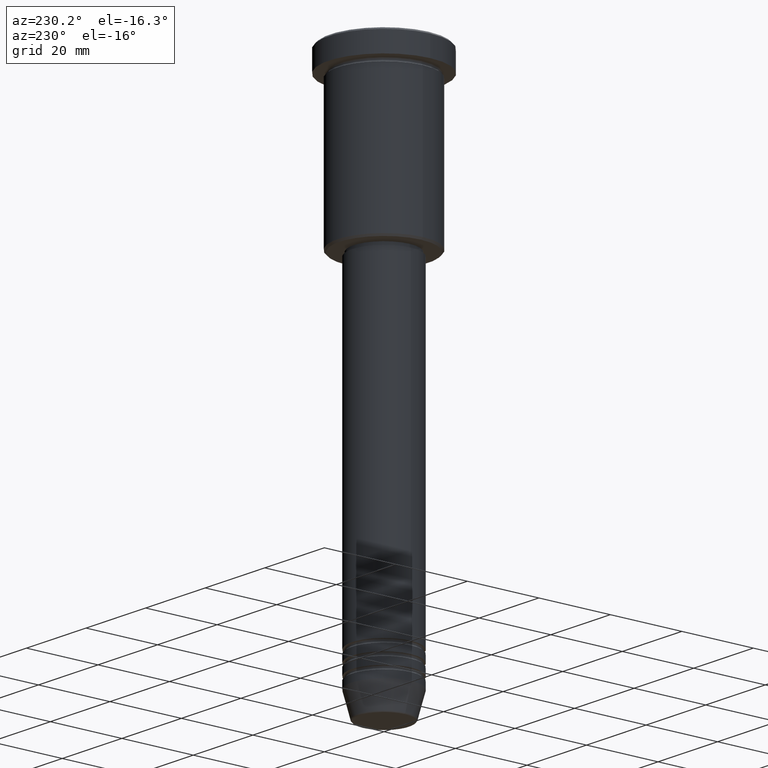
[diagram: clean part render]
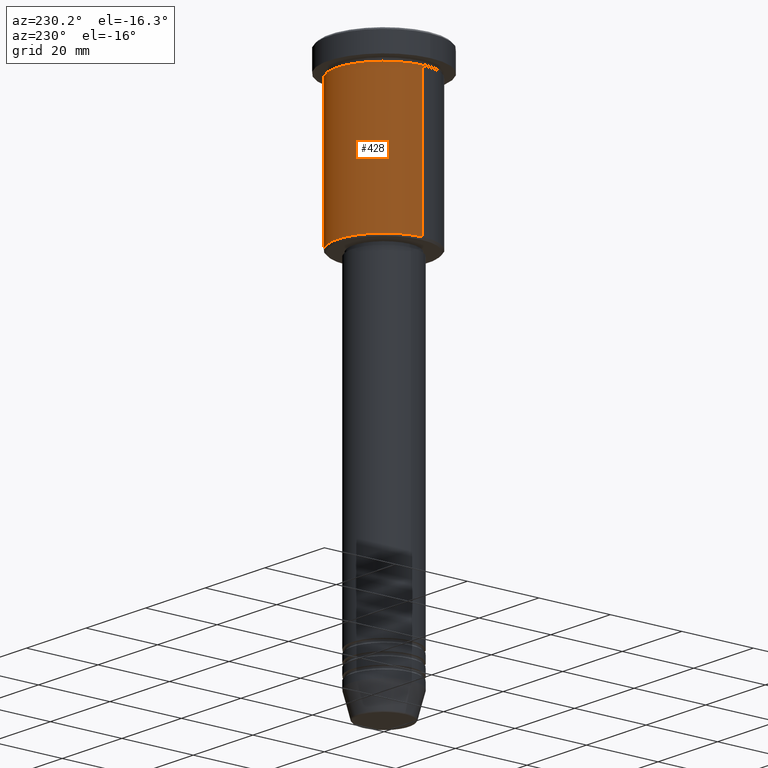
[diagram: same view with one face highlighted and labeled with its STEP entity id]
A machine part, auxiliary view. The second image highlights one B-rep face of the part: STEP entity #428.
In plain terms, the highlighted cylindrical surface (partial cylindrical patch) has radius 13 mm, axis along (-0, -0, 1).
Its self-contained STEP definition (entity closure, byte-faithful):
#43 = CARTESIAN_POINT ( 'NONE',  ( -13.00000000000000000, 1.592040838891559095E-15, 0.000000000000000000 ) ) ;
#51 = CIRCLE ( 'NONE', #689, 13.00000000000000000 ) ;
#56 = LINE ( 'NONE', #979, #169 ) ;
#96 = VERTEX_POINT ( 'NONE', #802 ) ;
#104 = ORIENTED_EDGE ( 'NONE', *, *, #233, .T. ) ;
#169 = VECTOR ( 'NONE', #1144, 1000.000000000000000 ) ;
#179 = CYLINDRICAL_SURFACE ( 'NONE', #951, 13.00000000000000000 ) ;
#220 = EDGE_CURVE ( 'NONE', #440, #1136, #56, .T. ) ;
#233 = EDGE_CURVE ( 'NONE', #440, #96, #280, .T. ) ;
#244 = EDGE_LOOP ( 'NONE', ( #104, #1083, #1157, #1183 ) ) ;
#251 = CARTESIAN_POINT ( 'NONE',  ( 0.000000000000000000, 0.000000000000000000, -6.999999999999995559 ) ) ;
#276 = VERTEX_POINT ( 'NONE', #770 ) ;
#280 = CIRCLE ( 'NONE', #586, 13.00000000000000000 ) ;
#344 = EDGE_CURVE ( 'NONE', #1136, #276, #51, .T. ) ;
#372 = CARTESIAN_POINT ( 'NONE',  ( 13.00000000000000000, 0.000000000000000000, -45.50000000000001421 ) ) ;
#428 = ADVANCED_FACE ( 'NONE', ( #805 ), #179, .T. ) ;
#440 = VERTEX_POINT ( 'NONE', #372 ) ;
#501 = DIRECTION ( 'NONE',  ( -1.000000000000000000, 0.000000000000000000, 0.000000000000000000 ) ) ;
#526 = DIRECTION ( 'NONE',  ( 1.000000000000000000, 0.000000000000000000, 0.000000000000000000 ) ) ;
#586 = AXIS2_PLACEMENT_3D ( 'NONE', #600, #605, #501 ) ;
#597 = DIRECTION ( 'NONE',  ( -0.000000000000000000, -0.000000000000000000, 1.000000000000000000 ) ) ;
#600 = CARTESIAN_POINT ( 'NONE',  ( 0.000000000000000000, 0.000000000000000000, -45.50000000000001421 ) ) ;
#605 = DIRECTION ( 'NONE',  ( -0.000000000000000000, -0.000000000000000000, 1.000000000000000000 ) ) ;
#617 = DIRECTION ( 'NONE',  ( -0.000000000000000000, -0.000000000000000000, 1.000000000000000000 ) ) ;
#689 = AXIS2_PLACEMENT_3D ( 'NONE', #251, #617, #797 ) ;
#770 = CARTESIAN_POINT ( 'NONE',  ( -13.00000000000000000, 1.592040838891559095E-15, -6.999999999999995559 ) ) ;
#797 = DIRECTION ( 'NONE',  ( 1.000000000000000000, 0.000000000000000000, 0.000000000000000000 ) ) ;
#802 = CARTESIAN_POINT ( 'NONE',  ( -13.00000000000000000, 1.592040838891559095E-15, -45.50000000000001421 ) ) ;
#805 = FACE_OUTER_BOUND ( 'NONE', #244, .T. ) ;
#913 = CARTESIAN_POINT ( 'NONE',  ( 0.000000000000000000, 0.000000000000000000, 0.000000000000000000 ) ) ;
#937 = LINE ( 'NONE', #43, #954 ) ;
#951 = AXIS2_PLACEMENT_3D ( 'NONE', #913, #1005, #526 ) ;
#954 = VECTOR ( 'NONE', #597, 1000.000000000000000 ) ;
#979 = CARTESIAN_POINT ( 'NONE',  ( 13.00000000000000000, 0.000000000000000000, 0.000000000000000000 ) ) ;
#1005 = DIRECTION ( 'NONE',  ( -0.000000000000000000, -0.000000000000000000, 1.000000000000000000 ) ) ;
#1018 = CARTESIAN_POINT ( 'NONE',  ( 13.00000000000000000, 0.000000000000000000, -6.999999999999995559 ) ) ;
#1083 = ORIENTED_EDGE ( 'NONE', *, *, #1145, .T. ) ;
#1136 = VERTEX_POINT ( 'NONE', #1018 ) ;
#1144 = DIRECTION ( 'NONE',  ( -0.000000000000000000, -0.000000000000000000, 1.000000000000000000 ) ) ;
#1145 = EDGE_CURVE ( 'NONE', #96, #276, #937, .T. ) ;
#1157 = ORIENTED_EDGE ( 'NONE', *, *, #344, .F. ) ;
#1183 = ORIENTED_EDGE ( 'NONE', *, *, #220, .F. ) ;